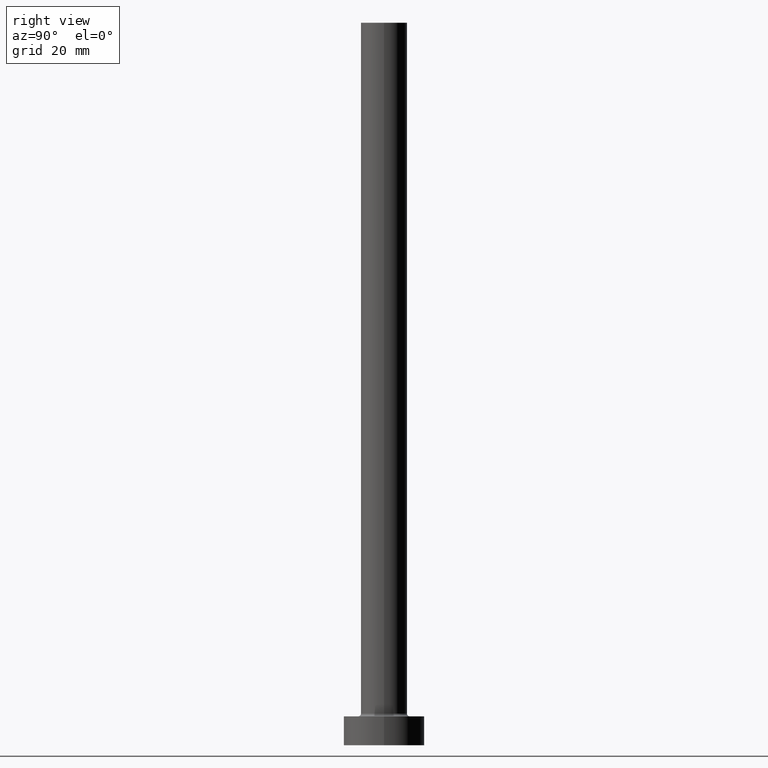
[diagram: clean part render]
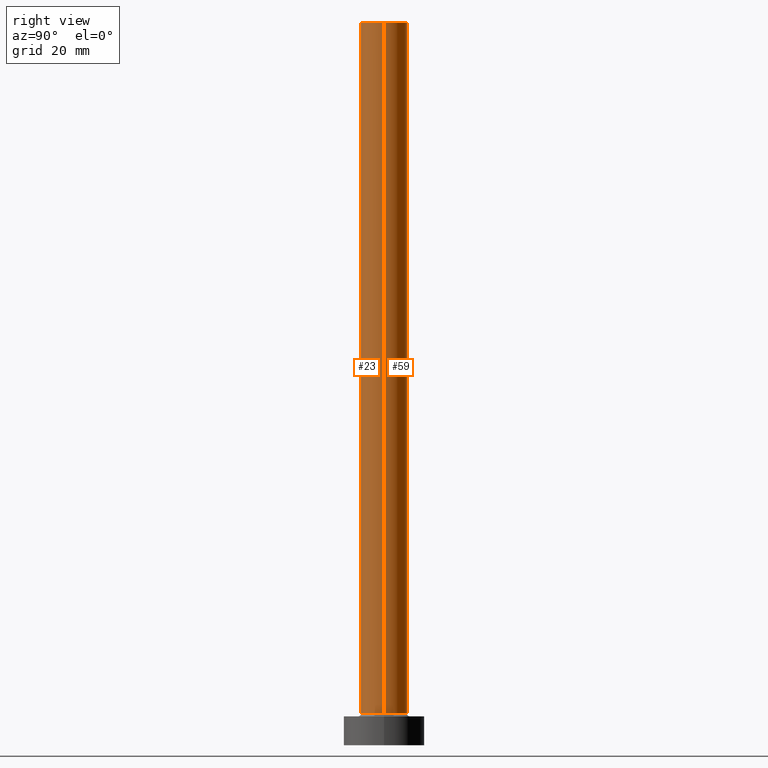
[diagram: same view with one multi-face feature highlighted, each face labeled with its STEP entity id]
A machine part, right view. The highlighted faces form ONE feature: a constant-radius fillet chain: 2 tangent blend faces with common blend radius 4 mm. The faces share edges in the B-rep.
Their STEP definitions:
[1] entity #23 (Cylinder):
#7 = EDGE_CURVE ( 'NONE', #334, #209, #160, .T. ) ;
#10 = DIRECTION ( 'NONE',  ( 0.000000000000000000, 0.000000000000000000, 1.000000000000000000 ) ) ;
#13 = DIRECTION ( 'NONE',  ( -0.000000000000000000, -0.000000000000000000, -1.000000000000000000 ) ) ;
#18 = CARTESIAN_POINT ( 'NONE',  ( -4.000000000000000000, 0.000000000000000000, 125.0000000000000000 ) ) ;
#20 = LINE ( 'NONE', #18, #450 ) ;
#23 = ADVANCED_FACE ( 'NONE', ( #92 ), #197, .T. ) ;
#39 = AXIS2_PLACEMENT_3D ( 'NONE', #77, #10, #156 ) ;
#43 = DIRECTION ( 'NONE',  ( -0.000000000000000000, -0.000000000000000000, -1.000000000000000000 ) ) ;
#45 = EDGE_CURVE ( 'NONE', #460, #103, #20, .T. ) ;
#50 = CARTESIAN_POINT ( 'NONE',  ( 4.000000000000000000, 4.898587196589412829E-16, 125.0000000000000000 ) ) ;
#57 = ORIENTED_EDGE ( 'NONE', *, *, #45, .T. ) ;
#77 = CARTESIAN_POINT ( 'NONE',  ( 0.000000000000000000, 0.000000000000000000, 125.0000000000000000 ) ) ;
#81 = DIRECTION ( 'NONE',  ( -1.000000000000000000, 0.000000000000000000, 0.000000000000000000 ) ) ;
#90 = CARTESIAN_POINT ( 'NONE',  ( 0.000000000000000000, 0.000000000000000000, 5.500000000000005329 ) ) ;
#92 = FACE_OUTER_BOUND ( 'NONE', #122, .T. ) ;
#95 = CARTESIAN_POINT ( 'NONE',  ( -4.000000000000000000, 0.000000000000000000, 125.0000000000000000 ) ) ;
#103 = VERTEX_POINT ( 'NONE', #305 ) ;
#122 = EDGE_LOOP ( 'NONE', ( #204, #205, #57, #251 ) ) ;
#124 = CARTESIAN_POINT ( 'NONE',  ( 0.000000000000000000, 0.000000000000000000, 125.0000000000000000 ) ) ;
#128 = DIRECTION ( 'NONE',  ( 1.000000000000000000, 0.000000000000000000, 0.000000000000000000 ) ) ;
#130 = AXIS2_PLACEMENT_3D ( 'NONE', #90, #171, #128 ) ;
#156 = DIRECTION ( 'NONE',  ( 1.000000000000000000, 0.000000000000000000, 0.000000000000000000 ) ) ;
#160 = LINE ( 'NONE', #50, #211 ) ;
#171 = DIRECTION ( 'NONE',  ( 0.000000000000000000, 0.000000000000000000, 1.000000000000000000 ) ) ;
#197 = CYLINDRICAL_SURFACE ( 'NONE', #362, 4.000000000000000000 ) ;
#204 = ORIENTED_EDGE ( 'NONE', *, *, #7, .F. ) ;
#205 = ORIENTED_EDGE ( 'NONE', *, *, #219, .F. ) ;
#209 = VERTEX_POINT ( 'NONE', #287 ) ;
#211 = VECTOR ( 'NONE', #13, 1000.000000000000000 ) ;
#219 = EDGE_CURVE ( 'NONE', #460, #334, #299, .T. ) ;
#229 = CARTESIAN_POINT ( 'NONE',  ( 4.000000000000000000, 4.898587196589412829E-16, 125.0000000000000000 ) ) ;
#232 = DIRECTION ( 'NONE',  ( -0.000000000000000000, -0.000000000000000000, -1.000000000000000000 ) ) ;
#251 = ORIENTED_EDGE ( 'NONE', *, *, #379, .T. ) ;
#287 = CARTESIAN_POINT ( 'NONE',  ( 4.000000000000000000, 4.898587196589412829E-16, 5.500000000000005329 ) ) ;
#299 = CIRCLE ( 'NONE', #39, 4.000000000000000000 ) ;
#305 = CARTESIAN_POINT ( 'NONE',  ( -4.000000000000000000, 0.000000000000000000, 5.500000000000005329 ) ) ;
#330 = CIRCLE ( 'NONE', #130, 4.000000000000000000 ) ;
#334 = VERTEX_POINT ( 'NONE', #229 ) ;
#362 = AXIS2_PLACEMENT_3D ( 'NONE', #124, #232, #81 ) ;
#379 = EDGE_CURVE ( 'NONE', #103, #209, #330, .T. ) ;
#450 = VECTOR ( 'NONE', #43, 1000.000000000000000 ) ;
#460 = VERTEX_POINT ( 'NONE', #95 ) ;
[2] entity #59 (Cylinder):
#7 = EDGE_CURVE ( 'NONE', #334, #209, #160, .T. ) ;
#8 = DIRECTION ( 'NONE',  ( -1.000000000000000000, 0.000000000000000000, 0.000000000000000000 ) ) ;
#13 = DIRECTION ( 'NONE',  ( -0.000000000000000000, -0.000000000000000000, -1.000000000000000000 ) ) ;
#18 = CARTESIAN_POINT ( 'NONE',  ( -4.000000000000000000, 0.000000000000000000, 125.0000000000000000 ) ) ;
#20 = LINE ( 'NONE', #18, #450 ) ;
#21 = CARTESIAN_POINT ( 'NONE',  ( 0.000000000000000000, 0.000000000000000000, 5.500000000000005329 ) ) ;
#42 = CYLINDRICAL_SURFACE ( 'NONE', #363, 4.000000000000000000 ) ;
#43 = DIRECTION ( 'NONE',  ( -0.000000000000000000, -0.000000000000000000, -1.000000000000000000 ) ) ;
#45 = EDGE_CURVE ( 'NONE', #460, #103, #20, .T. ) ;
#50 = CARTESIAN_POINT ( 'NONE',  ( 4.000000000000000000, 4.898587196589412829E-16, 125.0000000000000000 ) ) ;
#59 = ADVANCED_FACE ( 'NONE', ( #131 ), #42, .T. ) ;
#64 = CIRCLE ( 'NONE', #431, 4.000000000000000000 ) ;
#82 = DIRECTION ( 'NONE',  ( 0.000000000000000000, 0.000000000000000000, 1.000000000000000000 ) ) ;
#84 = AXIS2_PLACEMENT_3D ( 'NONE', #295, #429, #260 ) ;
#95 = CARTESIAN_POINT ( 'NONE',  ( -4.000000000000000000, 0.000000000000000000, 125.0000000000000000 ) ) ;
#103 = VERTEX_POINT ( 'NONE', #305 ) ;
#131 = FACE_OUTER_BOUND ( 'NONE', #343, .T. ) ;
#160 = LINE ( 'NONE', #50, #211 ) ;
#177 = ORIENTED_EDGE ( 'NONE', *, *, #45, .F. ) ;
#187 = CARTESIAN_POINT ( 'NONE',  ( 0.000000000000000000, 0.000000000000000000, 125.0000000000000000 ) ) ;
#188 = DIRECTION ( 'NONE',  ( -0.000000000000000000, -0.000000000000000000, -1.000000000000000000 ) ) ;
#209 = VERTEX_POINT ( 'NONE', #287 ) ;
#211 = VECTOR ( 'NONE', #13, 1000.000000000000000 ) ;
#229 = CARTESIAN_POINT ( 'NONE',  ( 4.000000000000000000, 4.898587196589412829E-16, 125.0000000000000000 ) ) ;
#260 = DIRECTION ( 'NONE',  ( 1.000000000000000000, 0.000000000000000000, 0.000000000000000000 ) ) ;
#266 = EDGE_CURVE ( 'NONE', #334, #460, #337, .T. ) ;
#287 = CARTESIAN_POINT ( 'NONE',  ( 4.000000000000000000, 4.898587196589412829E-16, 5.500000000000005329 ) ) ;
#295 = CARTESIAN_POINT ( 'NONE',  ( 0.000000000000000000, 0.000000000000000000, 125.0000000000000000 ) ) ;
#305 = CARTESIAN_POINT ( 'NONE',  ( -4.000000000000000000, 0.000000000000000000, 5.500000000000005329 ) ) ;
#327 = ORIENTED_EDGE ( 'NONE', *, *, #373, .T. ) ;
#334 = VERTEX_POINT ( 'NONE', #229 ) ;
#337 = CIRCLE ( 'NONE', #84, 4.000000000000000000 ) ;
#343 = EDGE_LOOP ( 'NONE', ( #454, #350, #327, #177 ) ) ;
#350 = ORIENTED_EDGE ( 'NONE', *, *, #7, .T. ) ;
#363 = AXIS2_PLACEMENT_3D ( 'NONE', #187, #188, #8 ) ;
#372 = DIRECTION ( 'NONE',  ( 1.000000000000000000, 0.000000000000000000, 0.000000000000000000 ) ) ;
#373 = EDGE_CURVE ( 'NONE', #209, #103, #64, .T. ) ;
#429 = DIRECTION ( 'NONE',  ( 0.000000000000000000, 0.000000000000000000, 1.000000000000000000 ) ) ;
#431 = AXIS2_PLACEMENT_3D ( 'NONE', #21, #82, #372 ) ;
#450 = VECTOR ( 'NONE', #43, 1000.000000000000000 ) ;
#454 = ORIENTED_EDGE ( 'NONE', *, *, #266, .F. ) ;
#460 = VERTEX_POINT ( 'NONE', #95 ) ;